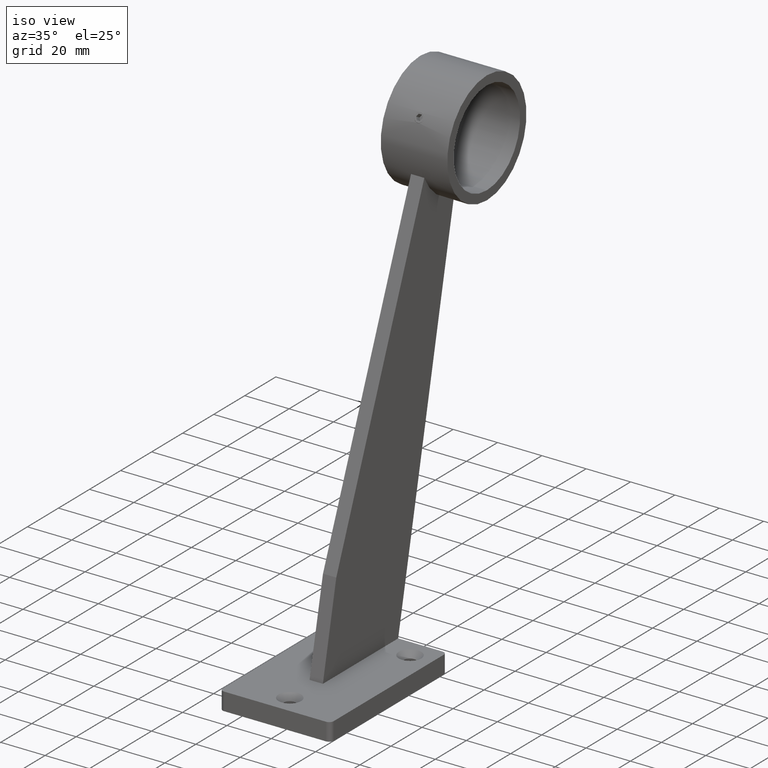
[diagram: clean part render]
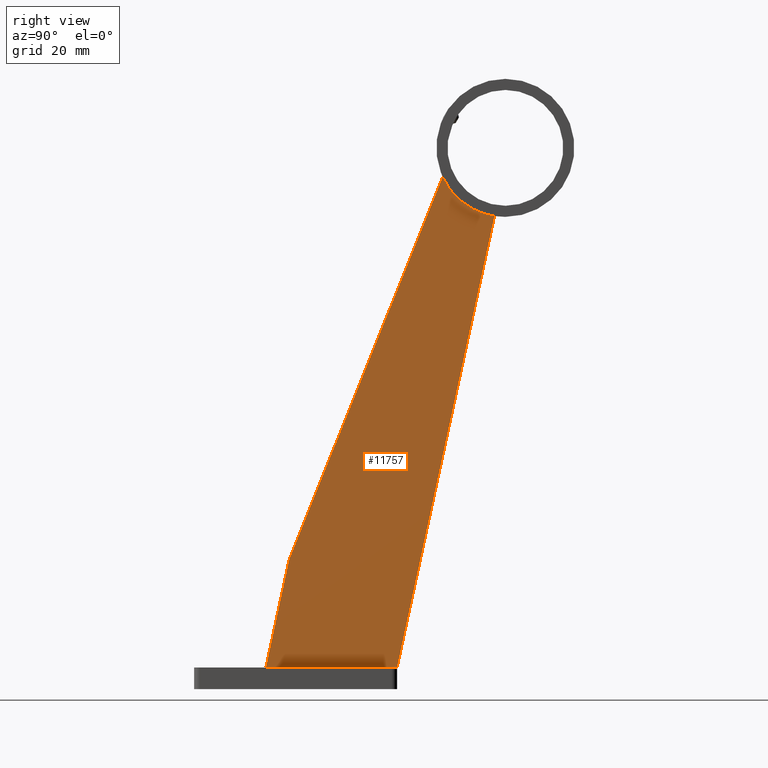
[diagram: tour spotlight — one face highlighted and labeled with its STEP entity id]
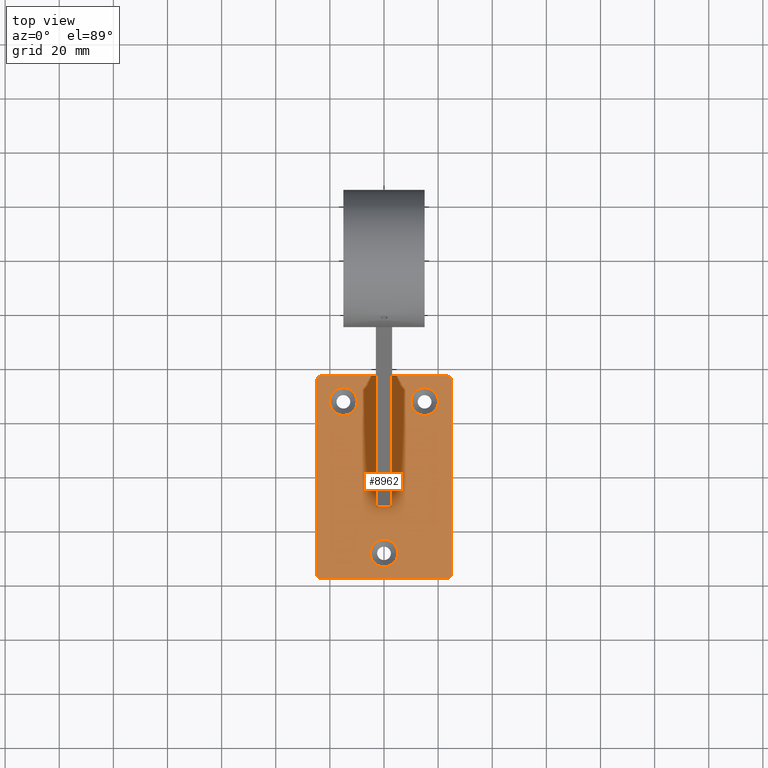
[diagram: tour spotlight — one face highlighted and labeled with its STEP entity id]
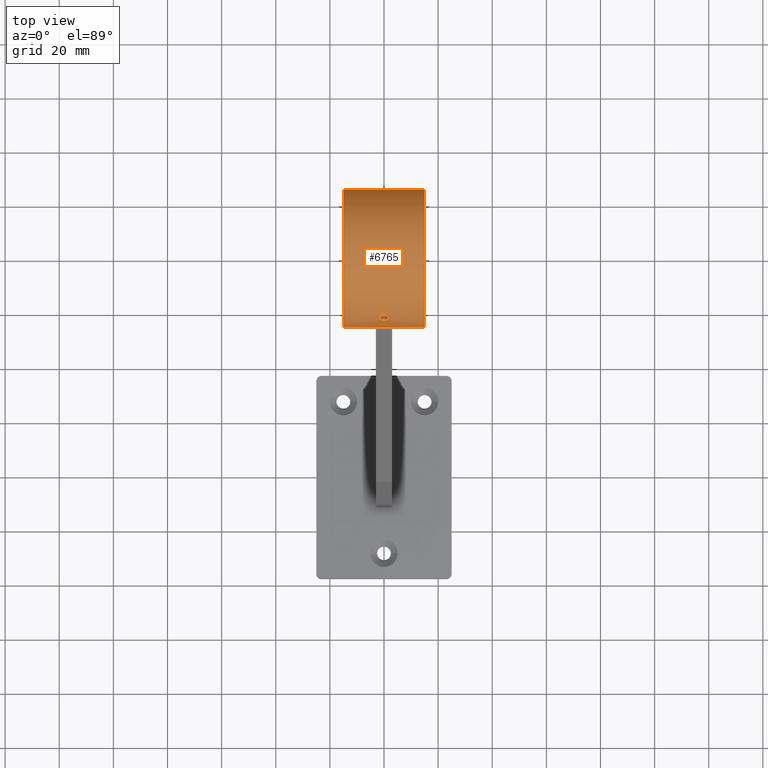
[diagram: tour spotlight — one face highlighted and labeled with its STEP entity id]
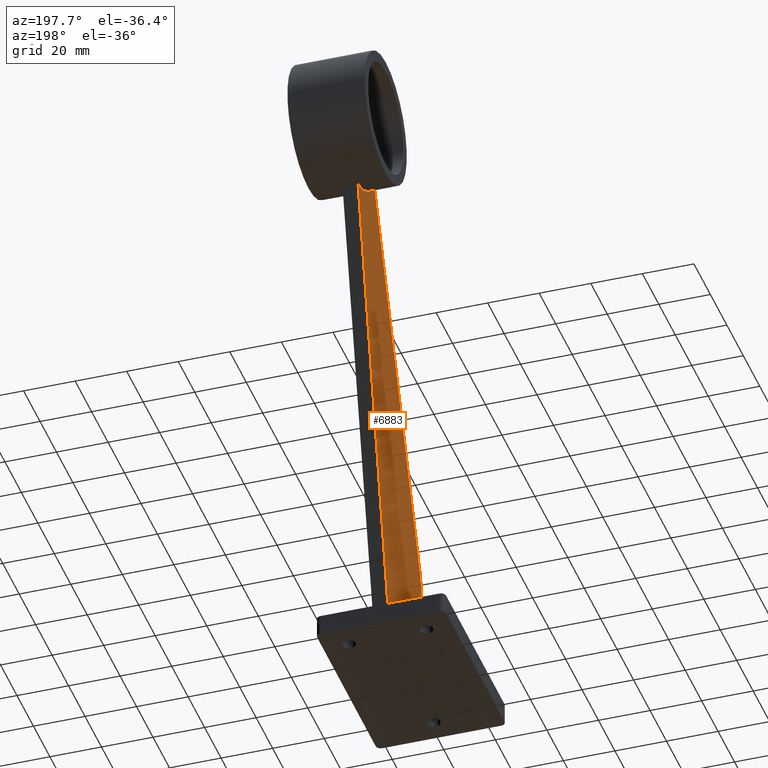
[diagram: tour spotlight — one face highlighted and labeled with its STEP entity id]
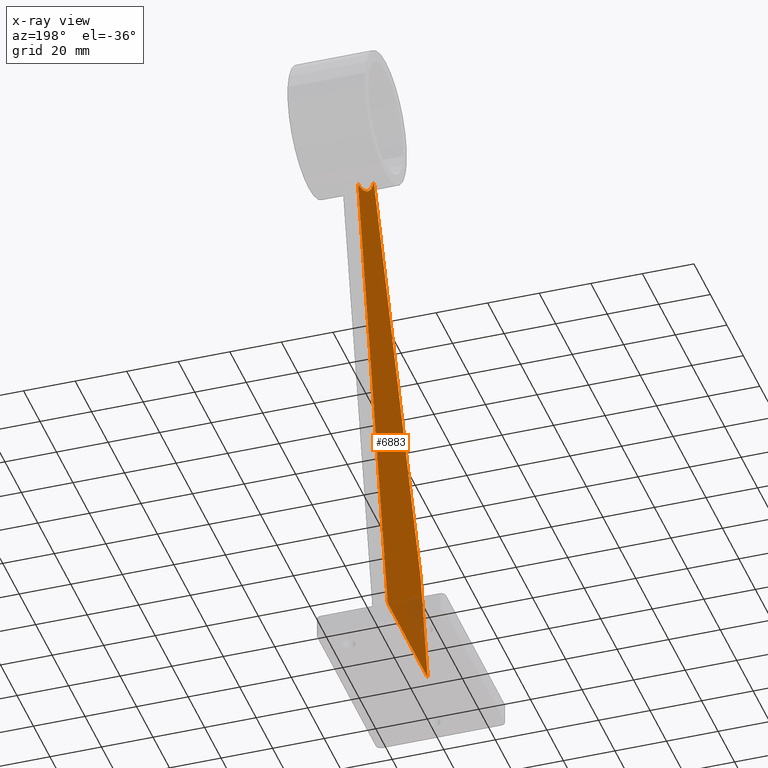
[diagram: x-ray of the same camera — body ghosted, this tour face saturated]
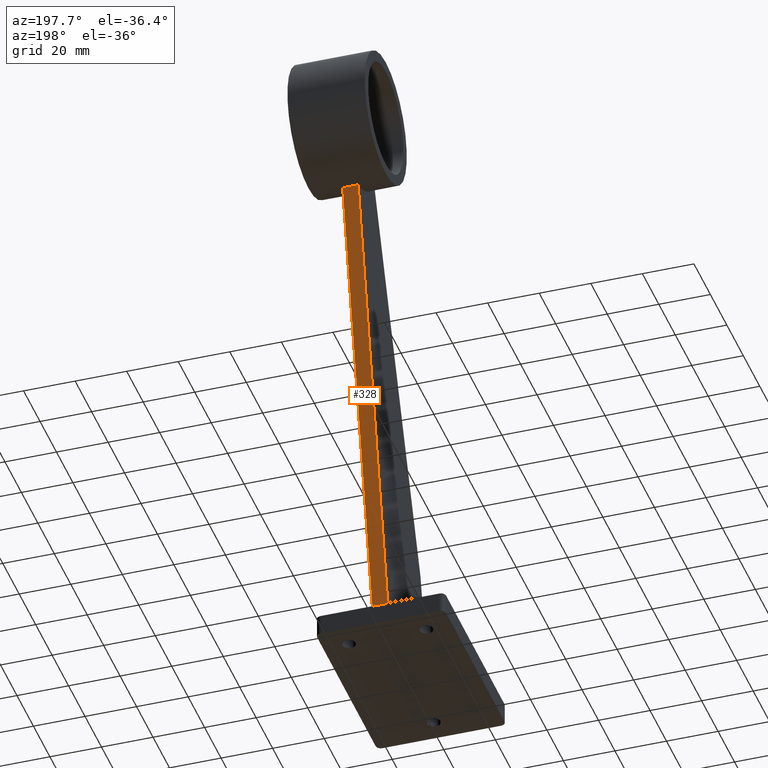
[diagram: tour spotlight — one face highlighted and labeled with its STEP entity id]
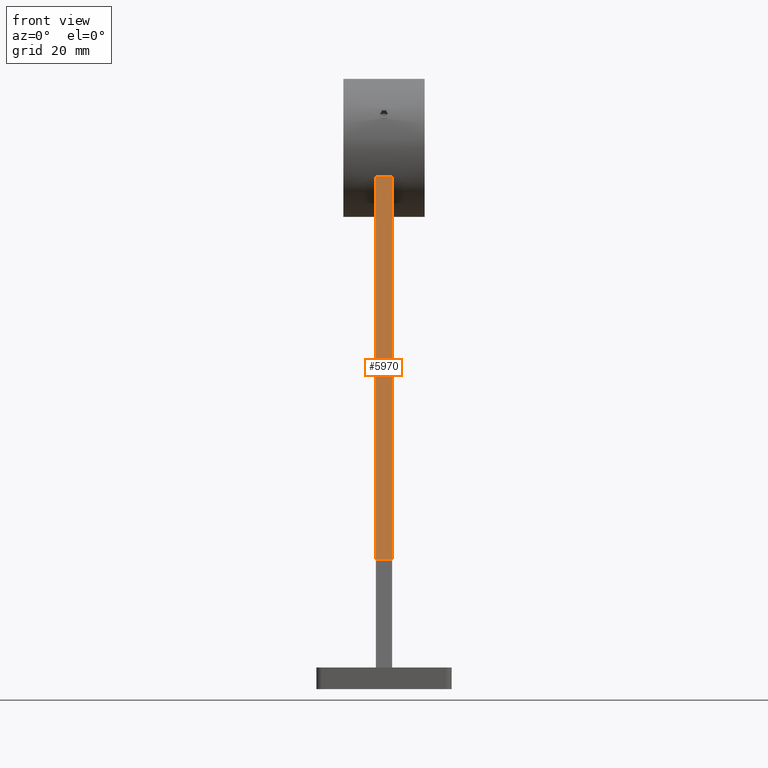
[diagram: tour spotlight — one face highlighted and labeled with its STEP entity id]
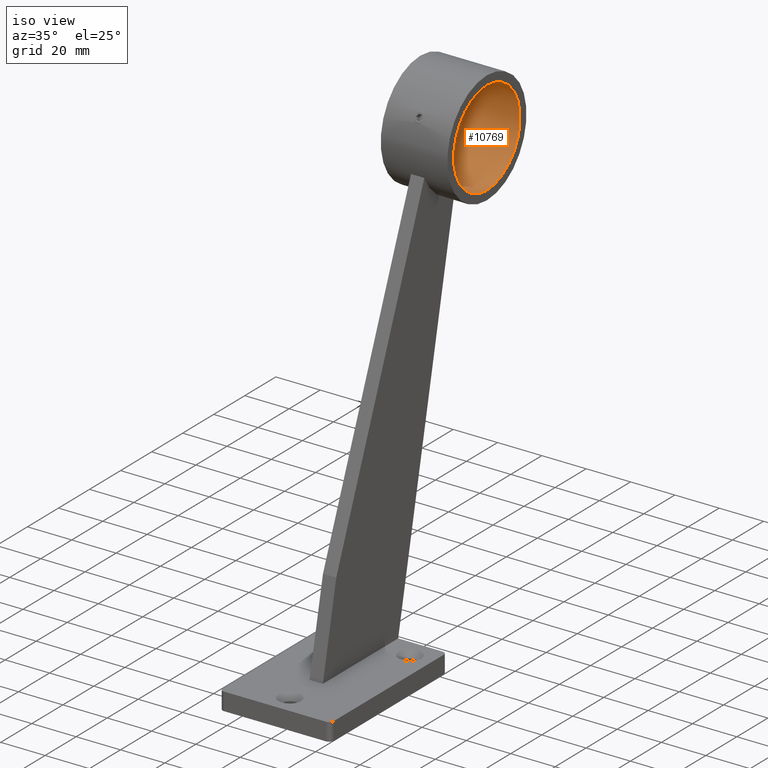
[diagram: tour spotlight — one face highlighted and labeled with its STEP entity id]
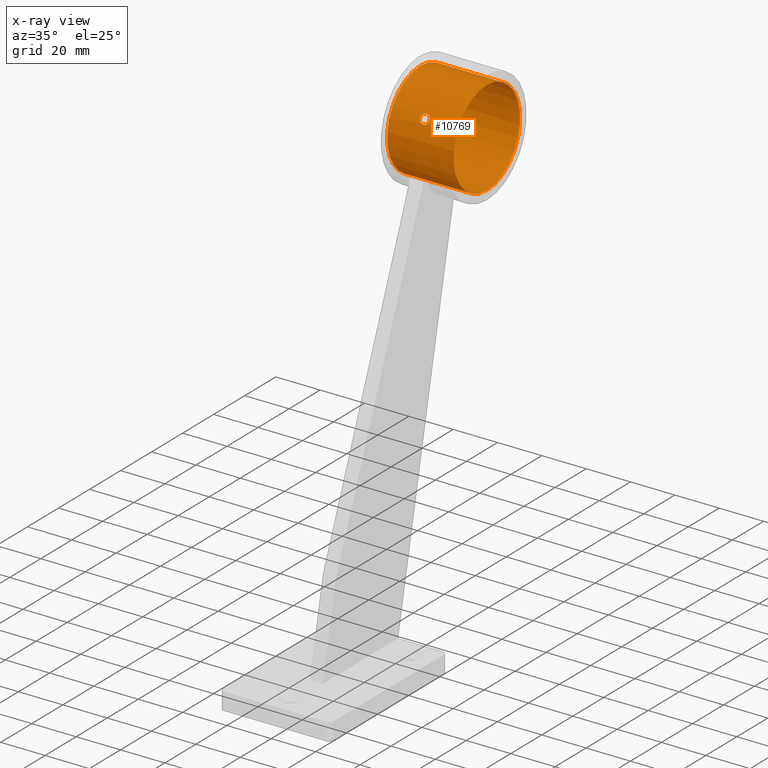
[diagram: x-ray of the same camera — body ghosted, this tour face saturated]
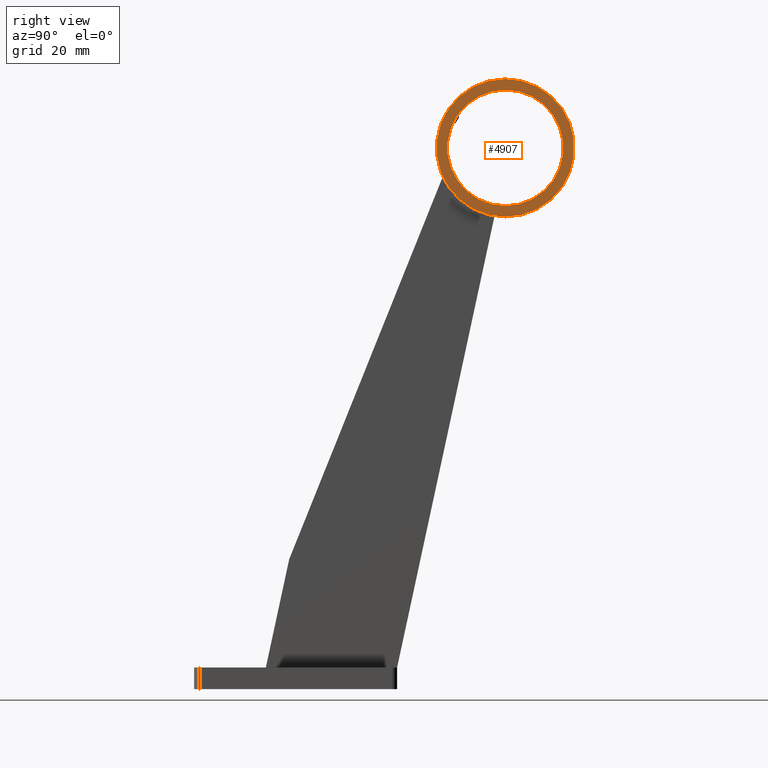
[diagram: tour spotlight — one face highlighted and labeled with its STEP entity id]
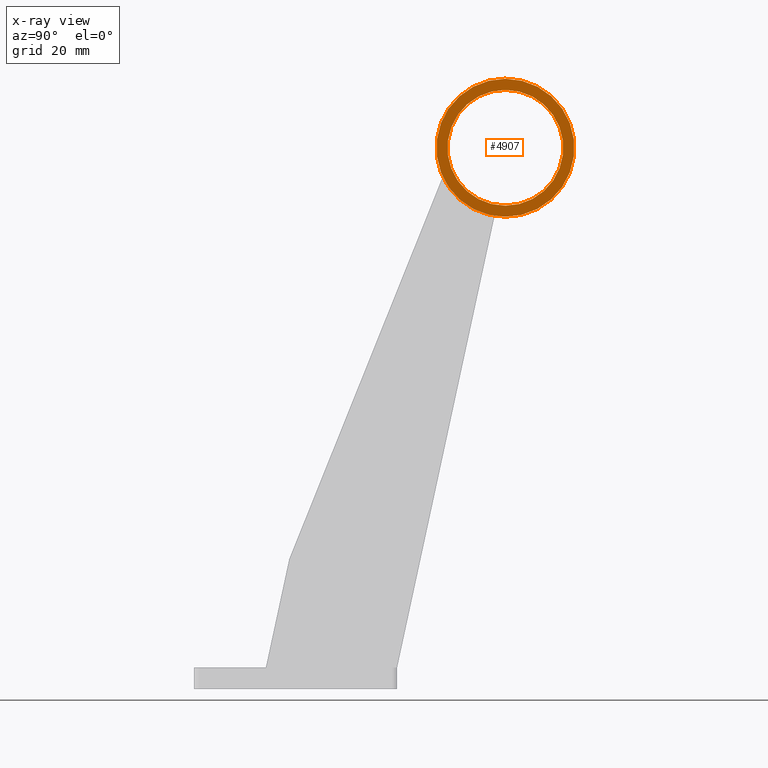
[diagram: x-ray of the same camera — body ghosted, this tour face saturated]
A machine part: a face-by-face anatomy tour. The part has 283 B-rep faces; the first image is the clean iso view, then the 8 largest visible faces are spotlighted one at a time (largest first), each with its STEP entity span.

Face 1 — right view, entity #11757. In plain terms, the highlighted planar face has unit normal (1, 0, 0).
Definition (entity closure, byte-faithful):
#112 = CARTESIAN_POINT ( 'NONE',  ( 3.000000000000000000, -12.16012668210152015, 2.624241090030875245 ) ) ;
#251 = DIRECTION ( 'NONE',  ( 0.000000000000000000, 0.2109506823000734665, 0.9774967056911922914 ) ) ;
#458 = ORIENTED_EDGE ( 'NONE', *, *, #14692, .F. ) ;
#911 = FACE_OUTER_BOUND ( 'NONE', #1834, .T. ) ;
#979 = ORIENTED_EDGE ( 'NONE', *, *, #6766, .F. ) ;
#1834 = EDGE_LOOP ( 'NONE', ( #979, #10997, #458, #2813, #5916 ) ) ;
#2273 = CARTESIAN_POINT ( 'NONE',  ( 3.000000000000000000, 0.000000000000000000, 0.000000000000000000 ) ) ;
#2528 = CARTESIAN_POINT ( 'NONE',  ( 3.000000000000000000, 0.000000000000000000, 8.000000000000000000 ) ) ;
#2548 = CARTESIAN_POINT ( 'NONE',  ( 3.000000000000000888, 54.35731167978458700, 189.2917799185221668 ) ) ;
#2813 = ORIENTED_EDGE ( 'NONE', *, *, #11470, .F. ) ;
#3425 = CIRCLE ( 'NONE', #14699, 25.49999999999999645 ) ;
#3853 = DIRECTION ( 'NONE',  ( 0.000000000000000000, 0.3725698851488922214, 0.9280041382882627810 ) ) ;
#4205 = CARTESIAN_POINT ( 'NONE',  ( 3.000000000000000000, 77.50000000000001421, 200.0000000000000000 ) ) ;
#4759 = VERTEX_POINT ( 'NONE', #10619 ) ;
#4951 = VECTOR ( 'NONE', #3853, 1000.000000000000114 ) ;
#5229 = VERTEX_POINT ( 'NONE', #10388 ) ;
#5409 = VECTOR ( 'NONE', #11841, 1000.000000000000000 ) ;
#5684 = DIRECTION ( 'NONE',  ( 1.000000000000000000, -0.000000000000000000, 0.000000000000000000 ) ) ;
#5916 = ORIENTED_EDGE ( 'NONE', *, *, #9752, .T. ) ;
#6200 = LINE ( 'NONE', #13157, #4951 ) ;
#6712 = LINE ( 'NONE', #112, #10839 ) ;
#6766 = EDGE_CURVE ( 'NONE', #13545, #13292, #3425, .T. ) ;
#8464 = VERTEX_POINT ( 'NONE', #12672 ) ;
#9752 = EDGE_CURVE ( 'NONE', #8464, #13292, #13378, .T. ) ;
#9906 = LINE ( 'NONE', #2528, #5409 ) ;
#9948 = CARTESIAN_POINT ( 'NONE',  ( 2.999999999999999112, 73.50000000000000000, 174.8156794810739711 ) ) ;
#10055 = DIRECTION ( 'NONE',  ( 0.000000000000000000, 0.000000000000000000, -1.000000000000000000 ) ) ;
#10318 = PLANE ( 'NONE',  #11641 ) ;
#10369 = VECTOR ( 'NONE', #14382, 1000.000000000000000 ) ;
#10388 = CARTESIAN_POINT ( 'NONE',  ( 3.000000000000000000, -11.00000000000000355, 8.000000000000000000 ) ) ;
#10619 = CARTESIAN_POINT ( 'NONE',  ( 3.000000000000000000, -2.367717923881523578, 48.00000000000000711 ) ) ;
#10839 = VECTOR ( 'NONE', #251, 1000.000000000000000 ) ;
#10997 = ORIENTED_EDGE ( 'NONE', *, *, #12635, .F. ) ;
#11470 = EDGE_CURVE ( 'NONE', #8464, #5229, #9906, .T. ) ;
#11641 = AXIS2_PLACEMENT_3D ( 'NONE', #2273, #5684, #12591 ) ;
#11757 = ADVANCED_FACE ( 'NONE', ( #911 ), #10318, .T. ) ;
#11841 = DIRECTION ( 'NONE',  ( 0.000000000000000000, -1.000000000000000000, 0.000000000000000000 ) ) ;
#12114 = DIRECTION ( 'NONE',  ( 1.000000000000000000, -0.000000000000000000, 0.000000000000000000 ) ) ;
#12591 = DIRECTION ( 'NONE',  ( 0.000000000000000000, 0.000000000000000000, -1.000000000000000000 ) ) ;
#12635 = EDGE_CURVE ( 'NONE', #4759, #13545, #6200, .T. ) ;
#12672 = CARTESIAN_POINT ( 'NONE',  ( 3.000000000000000000, 37.49999999999999289, 8.000000000000001776 ) ) ;
#13157 = CARTESIAN_POINT ( 'NONE',  ( 3.000000000000000000, -18.63488594879224891, 7.481429264432456705 ) ) ;
#13292 = VERTEX_POINT ( 'NONE', #9948 ) ;
#13378 = LINE ( 'NONE', #13385, #10369 ) ;
#13385 = CARTESIAN_POINT ( 'NONE',  ( 3.000000000000000000, 34.18161408529944367, -7.376633365033234746 ) ) ;
#13545 = VERTEX_POINT ( 'NONE', #2548 ) ;
#14382 = DIRECTION ( 'NONE',  ( 0.000000000000000000, 0.2109506823000734943, 0.9774967056911922914 ) ) ;
#14692 = EDGE_CURVE ( 'NONE', #5229, #4759, #6712, .T. ) ;
#14699 = AXIS2_PLACEMENT_3D ( 'NONE', #4205, #12114, #10055 ) ;

Face 2 — top view, entity #8962. In plain terms, the highlighted planar face has unit normal (0, 0, 1).
Definition (entity closure, byte-faithful):
#169 = VECTOR ( 'NONE', #6945, 1000.000000000000000 ) ;
#170 = VECTOR ( 'NONE', #673, 1000.000000000000000 ) ;
#673 = DIRECTION ( 'NONE',  ( 0.000000000000000000, -1.000000000000000000, 0.000000000000000000 ) ) ;
#944 = VERTEX_POINT ( 'NONE', #5038 ) ;
#949 = AXIS2_PLACEMENT_3D ( 'NONE', #1888, #1795, #11028 ) ;
#1007 = CARTESIAN_POINT ( 'NONE',  ( 22.99999999999999645, 35.50000000000000000, 8.000000000000000000 ) ) ;
#1115 = CARTESIAN_POINT ( 'NONE',  ( -23.00000000000000000, -35.50000000000000000, 8.000000000000000000 ) ) ;
#1157 = DIRECTION ( 'NONE',  ( -0.000000000000000000, 0.000000000000000000, 1.000000000000000000 ) ) ;
#1194 = EDGE_LOOP ( 'NONE', ( #5196 ) ) ;
#1216 = EDGE_LOOP ( 'NONE', ( #9152, #3372, #4034, #12821, #7150, #13023, #6757, #12934, #5566, #7648, #1704, #8627 ) ) ;
#1374 = EDGE_LOOP ( 'NONE', ( #6038 ) ) ;
#1525 = VERTEX_POINT ( 'NONE', #14377 ) ;
#1670 = CARTESIAN_POINT ( 'NONE',  ( 5.099999999999999645, -27.99999999999999645, 8.000000000000000000 ) ) ;
#1704 = ORIENTED_EDGE ( 'NONE', *, *, #12294, .T. ) ;
#1795 = DIRECTION ( 'NONE',  ( -0.000000000000000000, -0.000000000000000000, 1.000000000000000000 ) ) ;
#1858 = CARTESIAN_POINT ( 'NONE',  ( -24.99999999999999645, -37.50000000000000000, 8.000000000000000000 ) ) ;
#1888 = CARTESIAN_POINT ( 'NONE',  ( 15.00000000000000355, 27.99999999999999645, 8.000000000000000000 ) ) ;
#1964 = CIRCLE ( 'NONE', #9180, 2.000000000000001776 ) ;
#2031 = CIRCLE ( 'NONE', #14310, 1.999999999999998224 ) ;
#2061 = CIRCLE ( 'NONE', #5393, 2.000000000000001776 ) ;
#2191 = CARTESIAN_POINT ( 'NONE',  ( 0.000000000000000000, 0.000000000000000000, 8.000000000000000000 ) ) ;
#2218 = DIRECTION ( 'NONE',  ( 1.000000000000000000, 0.000000000000000000, 0.000000000000000000 ) ) ;
#2224 = VECTOR ( 'NONE', #9117, 1000.000000000000000 ) ;
#2294 = VERTEX_POINT ( 'NONE', #13479 ) ;
#2427 = EDGE_CURVE ( 'NONE', #6153, #6153, #8975, .T. ) ;
#2480 = FACE_BOUND ( 'NONE', #11087, .T. ) ;
#2483 = EDGE_CURVE ( 'NONE', #14098, #1525, #9879, .T. ) ;
#2528 = CARTESIAN_POINT ( 'NONE',  ( 3.000000000000000000, 0.000000000000000000, 8.000000000000000000 ) ) ;
#2546 = VERTEX_POINT ( 'NONE', #8990 ) ;
#3161 = CIRCLE ( 'NONE', #949, 5.100000000000000533 ) ;
#3347 = DIRECTION ( 'NONE',  ( -0.000000000000000000, 0.000000000000000000, 1.000000000000000000 ) ) ;
#3372 = ORIENTED_EDGE ( 'NONE', *, *, #13991, .T. ) ;
#3377 = CARTESIAN_POINT ( 'NONE',  ( 25.00000000000000000, 37.50000000000000000, 8.000000000000000000 ) ) ;
#3718 = CARTESIAN_POINT ( 'NONE',  ( -25.00000000000000355, 37.50000000000000000, 8.000000000000000000 ) ) ;
#3852 = VERTEX_POINT ( 'NONE', #12949 ) ;
#3857 = AXIS2_PLACEMENT_3D ( 'NONE', #5085, #10632, #11902 ) ;
#3903 = LINE ( 'NONE', #1858, #13766 ) ;
#4004 = DIRECTION ( 'NONE',  ( 1.000000000000000000, 0.000000000000000000, 0.000000000000000000 ) ) ;
#4034 = ORIENTED_EDGE ( 'NONE', *, *, #11790, .T. ) ;
#4142 = AXIS2_PLACEMENT_3D ( 'NONE', #1007, #12529, #2218 ) ;
#4171 = CARTESIAN_POINT ( 'NONE',  ( -3.000000000000000000, 37.49999999999999289, 8.000000000000001776 ) ) ;
#4859 = LINE ( 'NONE', #3718, #11120 ) ;
#4985 = FACE_BOUND ( 'NONE', #1194, .T. ) ;
#5001 = DIRECTION ( 'NONE',  ( -0.000000000000000000, -0.000000000000000000, 1.000000000000000000 ) ) ;
#5038 = CARTESIAN_POINT ( 'NONE',  ( 20.10000000000000497, 27.99999999999999645, 8.000000000000000000 ) ) ;
#5085 = CARTESIAN_POINT ( 'NONE',  ( 0.000000000000000000, -27.99999999999999645, 8.000000000000000000 ) ) ;
#5196 = ORIENTED_EDGE ( 'NONE', *, *, #13659, .F. ) ;
#5229 = VERTEX_POINT ( 'NONE', #10388 ) ;
#5393 = AXIS2_PLACEMENT_3D ( 'NONE', #8119, #5839, #13965 ) ;
#5409 = VECTOR ( 'NONE', #11841, 1000.000000000000000 ) ;
#5566 = ORIENTED_EDGE ( 'NONE', *, *, #6973, .T. ) ;
#5819 = LINE ( 'NONE', #3377, #2224 ) ;
#5839 = DIRECTION ( 'NONE',  ( -0.000000000000000000, 0.000000000000000000, 1.000000000000000000 ) ) ;
#6038 = ORIENTED_EDGE ( 'NONE', *, *, #10614, .F. ) ;
#6153 = VERTEX_POINT ( 'NONE', #9842 ) ;
#6264 = VERTEX_POINT ( 'NONE', #10945 ) ;
#6434 = AXIS2_PLACEMENT_3D ( 'NONE', #14255, #5001, #4004 ) ;
#6476 = EDGE_CURVE ( 'NONE', #13806, #2294, #1964, .T. ) ;
#6587 = DIRECTION ( 'NONE',  ( 1.000000000000000000, 0.000000000000000000, 0.000000000000000000 ) ) ;
#6757 = ORIENTED_EDGE ( 'NONE', *, *, #14510, .T. ) ;
#6938 = VERTEX_POINT ( 'NONE', #14159 ) ;
#6945 = DIRECTION ( 'NONE',  ( 9.251858538542971581E-17, -1.000000000000000000, 0.000000000000000000 ) ) ;
#6973 = EDGE_CURVE ( 'NONE', #2546, #8464, #4859, .T. ) ;
#7073 = CIRCLE ( 'NONE', #4142, 1.999999999999998224 ) ;
#7150 = ORIENTED_EDGE ( 'NONE', *, *, #9188, .T. ) ;
#7413 = VERTEX_POINT ( 'NONE', #1670 ) ;
#7605 = LINE ( 'NONE', #9552, #14565 ) ;
#7648 = ORIENTED_EDGE ( 'NONE', *, *, #11470, .T. ) ;
#8119 = CARTESIAN_POINT ( 'NONE',  ( -23.00000000000000711, 35.50000000000000000, 8.000000000000000000 ) ) ;
#8459 = ORIENTED_EDGE ( 'NONE', *, *, #2427, .F. ) ;
#8464 = VERTEX_POINT ( 'NONE', #12672 ) ;
#8627 = ORIENTED_EDGE ( 'NONE', *, *, #2483, .F. ) ;
#8864 = CARTESIAN_POINT ( 'NONE',  ( -24.99999999999999645, -35.50000000000000000, 8.000000000000000000 ) ) ;
#8959 = FACE_OUTER_BOUND ( 'NONE', #1216, .T. ) ;
#8962 = ADVANCED_FACE ( 'NONE', ( #2480, #9338, #4985, #8959 ), #13560, .T. ) ;
#8975 = CIRCLE ( 'NONE', #6434, 5.099999999999998757 ) ;
#8990 = CARTESIAN_POINT ( 'NONE',  ( 22.99999999999999645, 37.50000000000000000, 8.000000000000000000 ) ) ;
#9117 = DIRECTION ( 'NONE',  ( -4.625929269271485791E-17, 1.000000000000000000, -0.000000000000000000 ) ) ;
#9152 = ORIENTED_EDGE ( 'NONE', *, *, #14842, .T. ) ;
#9180 = AXIS2_PLACEMENT_3D ( 'NONE', #1115, #1157, #13847 ) ;
#9188 = EDGE_CURVE ( 'NONE', #2294, #6264, #3903, .T. ) ;
#9215 = CARTESIAN_POINT ( 'NONE',  ( 3.000000000000000000, -11.00000000000000355, 8.000000000000000000 ) ) ;
#9338 = FACE_BOUND ( 'NONE', #1374, .T. ) ;
#9447 = CARTESIAN_POINT ( 'NONE',  ( -25.00000000000000355, 35.50000000000000000, 8.000000000000000000 ) ) ;
#9552 = CARTESIAN_POINT ( 'NONE',  ( -25.00000000000000355, 37.50000000000000000, 8.000000000000000000 ) ) ;
#9564 = AXIS2_PLACEMENT_3D ( 'NONE', #2191, #3347, #14748 ) ;
#9791 = CARTESIAN_POINT ( 'NONE',  ( 23.00000000000000355, -35.50000000000000000, 8.000000000000000000 ) ) ;
#9839 = CARTESIAN_POINT ( 'NONE',  ( -3.000000000000000000, 0.000000000000000000, 8.000000000000000000 ) ) ;
#9842 = CARTESIAN_POINT ( 'NONE',  ( -9.900000000000005684, 27.99999999999999645, 8.000000000000000000 ) ) ;
#9879 = LINE ( 'NONE', #9839, #170 ) ;
#9906 = LINE ( 'NONE', #2528, #5409 ) ;
#10388 = CARTESIAN_POINT ( 'NONE',  ( 3.000000000000000000, -11.00000000000000355, 8.000000000000000000 ) ) ;
#10614 = EDGE_CURVE ( 'NONE', #944, #944, #3161, .T. ) ;
#10632 = DIRECTION ( 'NONE',  ( -0.000000000000000000, -0.000000000000000000, 1.000000000000000000 ) ) ;
#10945 = CARTESIAN_POINT ( 'NONE',  ( 23.00000000000000355, -37.50000000000000000, 8.000000000000000000 ) ) ;
#11027 = CIRCLE ( 'NONE', #3857, 5.099999999999999645 ) ;
#11028 = DIRECTION ( 'NONE',  ( 1.000000000000000000, 0.000000000000000000, 0.000000000000000000 ) ) ;
#11087 = EDGE_LOOP ( 'NONE', ( #8459 ) ) ;
#11120 = VECTOR ( 'NONE', #11816, 1000.000000000000000 ) ;
#11470 = EDGE_CURVE ( 'NONE', #8464, #5229, #9906, .T. ) ;
#11492 = DIRECTION ( 'NONE',  ( -1.000000000000000000, -0.000000000000000000, -0.000000000000000000 ) ) ;
#11790 = EDGE_CURVE ( 'NONE', #13562, #13806, #13621, .T. ) ;
#11816 = DIRECTION ( 'NONE',  ( -1.000000000000000000, -0.000000000000000000, -0.000000000000000000 ) ) ;
#11841 = DIRECTION ( 'NONE',  ( 0.000000000000000000, -1.000000000000000000, 0.000000000000000000 ) ) ;
#11902 = DIRECTION ( 'NONE',  ( 1.000000000000000000, 0.000000000000000000, 0.000000000000000000 ) ) ;
#12057 = DIRECTION ( 'NONE',  ( -1.000000000000000000, -0.000000000000000000, -0.000000000000000000 ) ) ;
#12294 = EDGE_CURVE ( 'NONE', #5229, #1525, #14607, .T. ) ;
#12307 = VERTEX_POINT ( 'NONE', #14821 ) ;
#12529 = DIRECTION ( 'NONE',  ( -0.000000000000000000, 0.000000000000000000, 1.000000000000000000 ) ) ;
#12672 = CARTESIAN_POINT ( 'NONE',  ( 3.000000000000000000, 37.49999999999999289, 8.000000000000001776 ) ) ;
#12821 = ORIENTED_EDGE ( 'NONE', *, *, #6476, .T. ) ;
#12934 = ORIENTED_EDGE ( 'NONE', *, *, #14535, .T. ) ;
#12949 = CARTESIAN_POINT ( 'NONE',  ( -23.00000000000000711, 37.50000000000000000, 8.000000000000000000 ) ) ;
#13023 = ORIENTED_EDGE ( 'NONE', *, *, #14818, .T. ) ;
#13266 = DIRECTION ( 'NONE',  ( 1.000000000000000000, 0.000000000000000000, 0.000000000000000000 ) ) ;
#13479 = CARTESIAN_POINT ( 'NONE',  ( -23.00000000000000000, -37.50000000000000000, 8.000000000000000000 ) ) ;
#13547 = VECTOR ( 'NONE', #11492, 1000.000000000000000 ) ;
#13560 = PLANE ( 'NONE',  #9564 ) ;
#13562 = VERTEX_POINT ( 'NONE', #9447 ) ;
#13621 = LINE ( 'NONE', #14777, #169 ) ;
#13659 = EDGE_CURVE ( 'NONE', #7413, #7413, #11027, .T. ) ;
#13766 = VECTOR ( 'NONE', #6587, 1000.000000000000000 ) ;
#13806 = VERTEX_POINT ( 'NONE', #8864 ) ;
#13847 = DIRECTION ( 'NONE',  ( 1.000000000000000000, 0.000000000000000000, 0.000000000000000000 ) ) ;
#13965 = DIRECTION ( 'NONE',  ( 1.000000000000000000, 0.000000000000000000, 0.000000000000000000 ) ) ;
#13991 = EDGE_CURVE ( 'NONE', #3852, #13562, #2061, .T. ) ;
#14098 = VERTEX_POINT ( 'NONE', #4171 ) ;
#14159 = CARTESIAN_POINT ( 'NONE',  ( 25.00000000000000000, 35.50000000000000000, 8.000000000000000000 ) ) ;
#14255 = CARTESIAN_POINT ( 'NONE',  ( -15.00000000000000533, 27.99999999999999645, 8.000000000000000000 ) ) ;
#14310 = AXIS2_PLACEMENT_3D ( 'NONE', #9791, #14312, #13266 ) ;
#14312 = DIRECTION ( 'NONE',  ( -0.000000000000000000, 0.000000000000000000, 1.000000000000000000 ) ) ;
#14377 = CARTESIAN_POINT ( 'NONE',  ( -3.000000000000000000, -11.00000000000000355, 8.000000000000000000 ) ) ;
#14510 = EDGE_CURVE ( 'NONE', #12307, #6938, #5819, .T. ) ;
#14535 = EDGE_CURVE ( 'NONE', #6938, #2546, #7073, .T. ) ;
#14565 = VECTOR ( 'NONE', #12057, 1000.000000000000000 ) ;
#14607 = LINE ( 'NONE', #9215, #13547 ) ;
#14748 = DIRECTION ( 'NONE',  ( 1.000000000000000000, 0.000000000000000000, 0.000000000000000000 ) ) ;
#14777 = CARTESIAN_POINT ( 'NONE',  ( -25.00000000000000355, 37.50000000000000000, 8.000000000000000000 ) ) ;
#14818 = EDGE_CURVE ( 'NONE', #6264, #12307, #2031, .T. ) ;
#14821 = CARTESIAN_POINT ( 'NONE',  ( 25.00000000000000355, -35.50000000000000000, 8.000000000000000000 ) ) ;
#14842 = EDGE_CURVE ( 'NONE', #14098, #3852, #7605, .T. ) ;

Face 3 — top view, entity #6765. In plain terms, the highlighted cylindrical surface (bore or boss wall) has radius 25.5 mm, axis along (-1, -0, -0).
Definition (entity closure, byte-faithful):
#103 = CARTESIAN_POINT ( 'NONE',  ( -2.100073886416768953, 55.48428676774947377, 212.8676782864014569 ) ) ;
#202 = CARTESIAN_POINT ( 'NONE',  ( -0.2752669258845035771, 54.44719391796184027, 210.9004058946567000 ) ) ;
#247 = CARTESIAN_POINT ( 'NONE',  ( -0.2770550746789550711, 56.53344737827564614, 214.5139381141528361 ) ) ;
#261 = EDGE_CURVE ( 'NONE', #13545, #11864, #11139, .T. ) ;
#291 = CARTESIAN_POINT ( 'NONE',  ( -1.822294103724356740, 55.96125180903748486, 213.6508349336732522 ) ) ;
#380 = CARTESIAN_POINT ( 'NONE',  ( 1.669122441164216930, 56.08491808673522883, 213.8440351628042038 ) ) ;
#775 = LINE ( 'NONE', #10085, #10516 ) ;
#882 = CIRCLE ( 'NONE', #7209, 25.49999999999999645 ) ;
#921 = DIRECTION ( 'NONE',  ( 0.000000000000000000, 0.000000000000000000, -1.000000000000000000 ) ) ;
#1248 = CARTESIAN_POINT ( 'NONE',  ( -1.993192082996712688, 55.76150720308228159, 213.3305707416730570 ) ) ;
#1305 = CARTESIAN_POINT ( 'NONE',  ( 1.289697830089673536, 56.30356715490667341, 214.1774035862536607 ) ) ;
#1439 = FACE_OUTER_BOUND ( 'NONE', #5411, .T. ) ;
#1447 = CARTESIAN_POINT ( 'NONE',  ( -1.670337499428492967, 56.08403152436552119, 213.8426609533973988 ) ) ;
#1490 = CARTESIAN_POINT ( 'NONE',  ( 1.993258047854111759, 55.08622020549162102, 212.1609494729769096 ) ) ;
#1605 = DIRECTION ( 'NONE',  ( -1.000000000000000000, -0.000000000000000000, -0.000000000000000000 ) ) ;
#1633 = CARTESIAN_POINT ( 'NONE',  ( 1.582877276748827500, 54.75546618989465486, 211.5302042317364055 ) ) ;
#1848 = EDGE_CURVE ( 'NONE', #3667, #3667, #882, .T. ) ;
#1929 = AXIS2_PLACEMENT_3D ( 'NONE', #14561, #5414, #5210 ) ;
#2002 = CARTESIAN_POINT ( 'NONE',  ( -15.00000000000000000, 77.50000000000001421, 200.0000000000000000 ) ) ;
#2058 = EDGE_CURVE ( 'NONE', #12244, #12244, #3659, .T. ) ;
#2454 = CARTESIAN_POINT ( 'NONE',  ( -2.044639982466134320, 55.14463589078562222, 212.2699469199698399 ) ) ;
#2503 = CARTESIAN_POINT ( 'NONE',  ( -1.835137253062850027, 54.90578279497353975, 211.8243499088329145 ) ) ;
#2548 = CARTESIAN_POINT ( 'NONE',  ( 3.000000000000000888, 54.35731167978458700, 189.2917799185221668 ) ) ;
#2588 = CARTESIAN_POINT ( 'NONE',  ( -1.583582562319257203, 56.14192854697918023, 213.9317060560475170 ) ) ;
#2676 = FACE_BOUND ( 'NONE', #7333, .T. ) ;
#2735 = CARTESIAN_POINT ( 'NONE',  ( 1.671457133818818441, 54.80456840716230005, 211.6267122668598688 ) ) ;
#2933 = CARTESIAN_POINT ( 'NONE',  ( 0.000000000000000000, 54.44136533085251983, 210.8880378027810991 ) ) ;
#3028 = DIRECTION ( 'NONE',  ( -1.000000000000000000, -0.000000000000000000, -0.000000000000000000 ) ) ;
#3038 = CYLINDRICAL_SURFACE ( 'NONE', #1929, 25.49999999999999645 ) ;
#3425 = CIRCLE ( 'NONE', #14699, 25.49999999999999645 ) ;
#3574 = CARTESIAN_POINT ( 'NONE',  ( -2.099851303524173929, 55.27877742316361775, 212.5116889994419864 ) ) ;
#3627 = CARTESIAN_POINT ( 'NONE',  ( -1.054205028420095447, 56.38333762886109923, 214.2948376251985678 ) ) ;
#3659 = B_SPLINE_CURVE_WITH_KNOTS ( 'NONE', 3,
 ( #12869, #13936, #202, #5962, #9413, #11680, #6004, #13833, #13986, #8186, #2503, #2454, #3574, #103, #7118, #14028, #1248, #4910, #291, #1447, #2588, #10638, #10494, #3627, #8239, #3762, #4766, #247, #5814, #6980, #4720, #11634, #1305, #8558, #380, #11956, #8415, #6104, #11865, #6250, #12002, #9690, #8509, #9738, #1490, #14253, #14067, #2735, #1633, #13055, #10674, #12956, #10773, #5047, #12912, #6056 ),
 .UNSPECIFIED., .T., .F.,
 ( 4, 2, 2, 2, 2, 2, 2, 2, 2, 2, 2, 2, 2, 2, 2, 2, 2, 2, 2, 2, 2, 2, 2, 2, 2, 2, 2, 4 ),
 ( 0.000000000000000000, 0.0004104734709353608153, 0.0008209469418707216306, 0.001231420412806082066, 0.001641893883741442611, 0.002462840825612110790, 0.003283787767482779403, 0.003694261238418144501, 0.004104734709353509599, 0.004515208180288874697, 0.004925681651224239795, 0.005336155122159604892, 0.005746628593094970858, 0.006157102064030335956, 0.006567575534965701053, 0.007388522476836430382, 0.008209469418707161445, 0.008619942889642526543, 0.009030416360577891641, 0.009440889831513256739, 0.009851363302448621836, 0.01026183677338398693, 0.01067231024431935203, 0.01108278371525471713, 0.01149325718619008223, 0.01190373065712544733, 0.01231420412806081242, 0.01313515106993154609 ),
 .UNSPECIFIED. ) ;
#3667 = VERTEX_POINT ( 'NONE', #14366 ) ;
#3762 = CARTESIAN_POINT ( 'NONE',  ( -0.6771053414310689300, 56.48013382368441881, 214.4366901540807930 ) ) ;
#3794 = VECTOR ( 'NONE', #1605, 1000.000000000000000 ) ;
#4111 = VERTEX_POINT ( 'NONE', #6805 ) ;
#4205 = CARTESIAN_POINT ( 'NONE',  ( 3.000000000000000000, 77.50000000000001421, 200.0000000000000000 ) ) ;
#4720 = CARTESIAN_POINT ( 'NONE',  ( 0.5497640949370750096, 56.50987302155034797, 214.4801782692479719 ) ) ;
#4766 = CARTESIAN_POINT ( 'NONE',  ( -0.5462099929733917891, 56.50277119661418368, 214.4695235235740256 ) ) ;
#4841 = ORIENTED_EDGE ( 'NONE', *, *, #1848, .F. ) ;
#4910 = CARTESIAN_POINT ( 'NONE',  ( -1.888020714575353809, 55.89560086643188441, 213.5468122987614379 ) ) ;
#5047 = CARTESIAN_POINT ( 'NONE',  ( 0.5533859377415798475, 54.46515514655388301, 210.9387845090656413 ) ) ;
#5210 = DIRECTION ( 'NONE',  ( 0.000000000000000000, 0.000000000000000000, 1.000000000000000000 ) ) ;
#5411 = EDGE_LOOP ( 'NONE', ( #4841 ) ) ;
#5414 = DIRECTION ( 'NONE',  ( -1.000000000000000000, -0.000000000000000000, -0.000000000000000000 ) ) ;
#5574 = DIRECTION ( 'NONE',  ( 1.000000000000000000, 0.000000000000000000, 0.000000000000000000 ) ) ;
#5748 = FACE_OUTER_BOUND ( 'NONE', #9529, .T. ) ;
#5814 = CARTESIAN_POINT ( 'NONE',  ( -0.1378350449928566757, 56.54133680910002369, 214.5253033446090285 ) ) ;
#5888 = AXIS2_PLACEMENT_3D ( 'NONE', #12547, #14787, #921 ) ;
#5962 = CARTESIAN_POINT ( 'NONE',  ( -0.5437344880969523508, 54.47013595652249052, 210.9487934980647594 ) ) ;
#6004 = CARTESIAN_POINT ( 'NONE',  ( -1.052009145292167380, 54.56140533267594606, 211.1389724736448272 ) ) ;
#6056 = CARTESIAN_POINT ( 'NONE',  ( 4.065758146820641628E-17, 54.44136533085253404, 210.8880378027810991 ) ) ;
#6104 = CARTESIAN_POINT ( 'NONE',  ( 1.991944648297779397, 55.76342154634961901, 213.3336906077510378 ) ) ;
#6250 = CARTESIAN_POINT ( 'NONE',  ( 2.086133895390165804, 55.55589685763782626, 212.9893940867520712 ) ) ;
#6253 = CIRCLE ( 'NONE', #8484, 25.49999999999999645 ) ;
#6262 = DIRECTION ( 'NONE',  ( 0.000000000000000000, 0.000000000000000000, -1.000000000000000000 ) ) ;
#6349 = ORIENTED_EDGE ( 'NONE', *, *, #6766, .T. ) ;
#6765 = ADVANCED_FACE ( 'NONE', ( #2676, #7350, #1439, #5748 ), #3038, .T. ) ;
#6766 = EDGE_CURVE ( 'NONE', #13545, #13292, #3425, .T. ) ;
#6805 = CARTESIAN_POINT ( 'NONE',  ( -3.000000000000000000, 73.50000000000000000, 174.8156794810739996 ) ) ;
#6980 = CARTESIAN_POINT ( 'NONE',  ( 0.2733829336889419537, 56.54142213706438014, 214.5254264644187856 ) ) ;
#7118 = CARTESIAN_POINT ( 'NONE',  ( -2.086432461926153170, 55.55485895280471453, 212.9876452708938359 ) ) ;
#7209 = AXIS2_PLACEMENT_3D ( 'NONE', #10214, #5574, #8044 ) ;
#7333 = EDGE_LOOP ( 'NONE', ( #9800 ) ) ;
#7350 = FACE_BOUND ( 'NONE', #11427, .T. ) ;
#8044 = DIRECTION ( 'NONE',  ( 0.000000000000000000, 0.000000000000000000, -1.000000000000000000 ) ) ;
#8186 = CARTESIAN_POINT ( 'NONE',  ( -1.678695858380248263, 54.79847981107506882, 211.6158777008026277 ) ) ;
#8239 = CARTESIAN_POINT ( 'NONE',  ( -0.9314683265812169211, 56.42043534913173630, 214.3493815478234126 ) ) ;
#8312 = EDGE_CURVE ( 'NONE', #9769, #9769, #6253, .T. ) ;
#8341 = CARTESIAN_POINT ( 'NONE',  ( -2.999999999999999112, 54.35731167978458700, 189.2917799185221952 ) ) ;
#8415 = CARTESIAN_POINT ( 'NONE',  ( 1.886356009640111742, 55.89739042894791510, 213.5496644908874089 ) ) ;
#8484 = AXIS2_PLACEMENT_3D ( 'NONE', #2002, #13478, #6262 ) ;
#8509 = CARTESIAN_POINT ( 'NONE',  ( 2.086614573074731638, 55.28059904943245328, 212.5126434641860840 ) ) ;
#8558 = CARTESIAN_POINT ( 'NONE',  ( 1.580384873571782478, 56.14383383170503805, 213.9346170038214154 ) ) ;
#8892 = ORIENTED_EDGE ( 'NONE', *, *, #13858, .T. ) ;
#9413 = CARTESIAN_POINT ( 'NONE',  ( -0.6771294247729349181, 54.48753133426209416, 210.9854030761437684 ) ) ;
#9529 = EDGE_LOOP ( 'NONE', ( #9619 ) ) ;
#9619 = ORIENTED_EDGE ( 'NONE', *, *, #8312, .T. ) ;
#9690 = CARTESIAN_POINT ( 'NONE',  ( 2.100134271862207580, 55.34804215699373486, 212.6317056441443185 ) ) ;
#9738 = CARTESIAN_POINT ( 'NONE',  ( 2.033483573927915344, 55.15007642988551595, 212.2779860512202106 ) ) ;
#9769 = VERTEX_POINT ( 'NONE', #10976 ) ;
#9800 = ORIENTED_EDGE ( 'NONE', *, *, #2058, .T. ) ;
#9948 = CARTESIAN_POINT ( 'NONE',  ( 2.999999999999999112, 73.50000000000000000, 174.8156794810739711 ) ) ;
#10055 = DIRECTION ( 'NONE',  ( 0.000000000000000000, 0.000000000000000000, -1.000000000000000000 ) ) ;
#10085 = CARTESIAN_POINT ( 'NONE',  ( 3.000000000000000000, 73.50000000000000000, 174.8156794810739996 ) ) ;
#10214 = CARTESIAN_POINT ( 'NONE',  ( 15.00000000000000000, 77.50000000000001421, 200.0000000000000000 ) ) ;
#10494 = CARTESIAN_POINT ( 'NONE',  ( -1.281538936697958375, 56.29823918962445362, 214.1683150362734978 ) ) ;
#10516 = VECTOR ( 'NONE', #3028, 1000.000000000000000 ) ;
#10638 = CARTESIAN_POINT ( 'NONE',  ( -1.387628548782914306, 56.24989894020053782, 214.0958453018172349 ) ) ;
#10674 = CARTESIAN_POINT ( 'NONE',  ( 1.283728406994136373, 54.62969946790408216, 211.2785318334723854 ) ) ;
#10773 = CARTESIAN_POINT ( 'NONE',  ( 0.9322498694561491828, 54.53348644153064839, 211.0811563457145610 ) ) ;
#10976 = CARTESIAN_POINT ( 'NONE',  ( -15.00000000000000000, 77.50000000000001421, 174.5000000000000284 ) ) ;
#11139 = LINE ( 'NONE', #13027, #3794 ) ;
#11427 = EDGE_LOOP ( 'NONE', ( #6349, #8892, #12210, #14798 ) ) ;
#11634 = CARTESIAN_POINT ( 'NONE',  ( 1.055346634003174966, 56.39150788878001919, 214.3070805572347410 ) ) ;
#11680 = CARTESIAN_POINT ( 'NONE',  ( -0.9314143365514259143, 54.53327850270911625, 211.0807264429185182 ) ) ;
#11864 = VERTEX_POINT ( 'NONE', #8341 ) ;
#11865 = CARTESIAN_POINT ( 'NONE',  ( 2.032514250610748974, 55.69387399271450079, 213.2197159582936763 ) ) ;
#11956 = CARTESIAN_POINT ( 'NONE',  ( 1.821763861562433418, 55.96177435253073895, 213.6516621295539267 ) ) ;
#12002 = CARTESIAN_POINT ( 'NONE',  ( 2.099863729233002463, 55.48671122125399791, 212.8718429489398147 ) ) ;
#12114 = DIRECTION ( 'NONE',  ( 1.000000000000000000, -0.000000000000000000, 0.000000000000000000 ) ) ;
#12210 = ORIENTED_EDGE ( 'NONE', *, *, #13899, .F. ) ;
#12244 = VERTEX_POINT ( 'NONE', #2933 ) ;
#12547 = CARTESIAN_POINT ( 'NONE',  ( -3.000000000000000000, 77.50000000000001421, 200.0000000000000000 ) ) ;
#12869 = CARTESIAN_POINT ( 'NONE',  ( 4.065758146820641628E-17, 54.44136533085253404, 210.8880378027810991 ) ) ;
#12912 = CARTESIAN_POINT ( 'NONE',  ( 0.2775981478388158119, 54.44136533085253404, 210.8880378027810423 ) ) ;
#12956 = CARTESIAN_POINT ( 'NONE',  ( 1.054526181151268283, 54.56201644666770534, 211.1402350627845692 ) ) ;
#13027 = CARTESIAN_POINT ( 'NONE',  ( 3.000000000000000000, 54.35731167978458700, 189.2917799185221952 ) ) ;
#13055 = CARTESIAN_POINT ( 'NONE',  ( 1.389318202104934175, 54.66831911350185891, 211.3566621752032688 ) ) ;
#13292 = VERTEX_POINT ( 'NONE', #9948 ) ;
#13478 = DIRECTION ( 'NONE',  ( 1.000000000000000000, 0.000000000000000000, 0.000000000000000000 ) ) ;
#13532 = CIRCLE ( 'NONE', #5888, 25.49999999999999645 ) ;
#13545 = VERTEX_POINT ( 'NONE', #2548 ) ;
#13833 = CARTESIAN_POINT ( 'NONE',  ( -1.280239789343413870, 54.62854055746980464, 211.2761773686432036 ) ) ;
#13858 = EDGE_CURVE ( 'NONE', #13292, #4111, #775, .T. ) ;
#13899 = EDGE_CURVE ( 'NONE', #11864, #4111, #13532, .T. ) ;
#13936 = CARTESIAN_POINT ( 'NONE',  ( -0.1387990739194058520, 54.44136533085253404, 210.8880378027810991 ) ) ;
#13986 = CARTESIAN_POINT ( 'NONE',  ( -1.388255184350261073, 54.66790464498487268, 211.3558280240384875 ) ) ;
#14028 = CARTESIAN_POINT ( 'NONE',  ( -2.032842836749617188, 55.69329494147185500, 213.2187654398672407 ) ) ;
#14067 = CARTESIAN_POINT ( 'NONE',  ( 1.823573659265397717, 54.90966298243738208, 211.8296122825080658 ) ) ;
#14253 = CARTESIAN_POINT ( 'NONE',  ( 1.887991615645295163, 54.96587947274581865, 211.9364831011563126 ) ) ;
#14366 = CARTESIAN_POINT ( 'NONE',  ( 15.00000000000000000, 77.50000000000001421, 174.5000000000000284 ) ) ;
#14561 = CARTESIAN_POINT ( 'NONE',  ( 15.00000000000000000, 77.50000000000001421, 200.0000000000000000 ) ) ;
#14699 = AXIS2_PLACEMENT_3D ( 'NONE', #4205, #12114, #10055 ) ;
#14787 = DIRECTION ( 'NONE',  ( 1.000000000000000000, -0.000000000000000000, 0.000000000000000000 ) ) ;
#14798 = ORIENTED_EDGE ( 'NONE', *, *, #261, .F. ) ;

Face 4 — auxiliary view, entity #6883. An x-ray twin of the same camera follows (body ghosted, this face saturated) — the face is partly hidden behind the body. In plain terms, the highlighted planar face has unit normal (1, 0, 0).
Definition (entity closure, byte-faithful):
#153 = VECTOR ( 'NONE', #5396, 1000.000000000000000 ) ;
#170 = VECTOR ( 'NONE', #673, 1000.000000000000000 ) ;
#379 = CARTESIAN_POINT ( 'NONE',  ( -3.000000000000000000, -18.63488594879224891, 7.481429264432456705 ) ) ;
#673 = DIRECTION ( 'NONE',  ( 0.000000000000000000, -1.000000000000000000, 0.000000000000000000 ) ) ;
#780 = ORIENTED_EDGE ( 'NONE', *, *, #8668, .T. ) ;
#921 = DIRECTION ( 'NONE',  ( 0.000000000000000000, 0.000000000000000000, -1.000000000000000000 ) ) ;
#1244 = DIRECTION ( 'NONE',  ( 0.000000000000000000, 0.000000000000000000, -1.000000000000000000 ) ) ;
#1525 = VERTEX_POINT ( 'NONE', #14377 ) ;
#2029 = EDGE_CURVE ( 'NONE', #14098, #4111, #3609, .T. ) ;
#2483 = EDGE_CURVE ( 'NONE', #14098, #1525, #9879, .T. ) ;
#2487 = ORIENTED_EDGE ( 'NONE', *, *, #13899, .T. ) ;
#2530 = ORIENTED_EDGE ( 'NONE', *, *, #9033, .T. ) ;
#3515 = CARTESIAN_POINT ( 'NONE',  ( -3.000000000000000000, 0.000000000000000000, 0.000000000000000000 ) ) ;
#3609 = LINE ( 'NONE', #9361, #10428 ) ;
#4111 = VERTEX_POINT ( 'NONE', #6805 ) ;
#4171 = CARTESIAN_POINT ( 'NONE',  ( -3.000000000000000000, 37.49999999999999289, 8.000000000000001776 ) ) ;
#5396 = DIRECTION ( 'NONE',  ( 0.000000000000000000, 0.2109506823000734665, 0.9774967056911922914 ) ) ;
#5465 = ORIENTED_EDGE ( 'NONE', *, *, #2483, .T. ) ;
#5888 = AXIS2_PLACEMENT_3D ( 'NONE', #12547, #14787, #921 ) ;
#6235 = LINE ( 'NONE', #6755, #153 ) ;
#6755 = CARTESIAN_POINT ( 'NONE',  ( -3.000000000000000000, -12.16012668210152015, 2.624241090030875245 ) ) ;
#6805 = CARTESIAN_POINT ( 'NONE',  ( -3.000000000000000000, 73.50000000000000000, 174.8156794810739996 ) ) ;
#6871 = PLANE ( 'NONE',  #12696 ) ;
#6883 = ADVANCED_FACE ( 'NONE', ( #7930 ), #6871, .F. ) ;
#7884 = LINE ( 'NONE', #379, #9158 ) ;
#7930 = FACE_OUTER_BOUND ( 'NONE', #8208, .T. ) ;
#8208 = EDGE_LOOP ( 'NONE', ( #2487, #9137, #5465, #2530, #780 ) ) ;
#8341 = CARTESIAN_POINT ( 'NONE',  ( -2.999999999999999112, 54.35731167978458700, 189.2917799185221952 ) ) ;
#8668 = EDGE_CURVE ( 'NONE', #9626, #11864, #7884, .T. ) ;
#9033 = EDGE_CURVE ( 'NONE', #1525, #9626, #6235, .T. ) ;
#9137 = ORIENTED_EDGE ( 'NONE', *, *, #2029, .F. ) ;
#9158 = VECTOR ( 'NONE', #10772, 1000.000000000000114 ) ;
#9361 = CARTESIAN_POINT ( 'NONE',  ( -3.000000000000000000, 34.18161408529944367, -7.376633365033234746 ) ) ;
#9452 = DIRECTION ( 'NONE',  ( 0.000000000000000000, 0.2109506823000734943, 0.9774967056911922914 ) ) ;
#9626 = VERTEX_POINT ( 'NONE', #10804 ) ;
#9839 = CARTESIAN_POINT ( 'NONE',  ( -3.000000000000000000, 0.000000000000000000, 8.000000000000000000 ) ) ;
#9879 = LINE ( 'NONE', #9839, #170 ) ;
#10428 = VECTOR ( 'NONE', #9452, 1000.000000000000000 ) ;
#10772 = DIRECTION ( 'NONE',  ( 0.000000000000000000, 0.3725698851488922214, 0.9280041382882627810 ) ) ;
#10804 = CARTESIAN_POINT ( 'NONE',  ( -3.000000000000000000, -2.367717923881523578, 48.00000000000000711 ) ) ;
#11864 = VERTEX_POINT ( 'NONE', #8341 ) ;
#12547 = CARTESIAN_POINT ( 'NONE',  ( -3.000000000000000000, 77.50000000000001421, 200.0000000000000000 ) ) ;
#12669 = DIRECTION ( 'NONE',  ( 1.000000000000000000, -0.000000000000000000, 0.000000000000000000 ) ) ;
#12696 = AXIS2_PLACEMENT_3D ( 'NONE', #3515, #12669, #1244 ) ;
#13532 = CIRCLE ( 'NONE', #5888, 25.49999999999999645 ) ;
#13899 = EDGE_CURVE ( 'NONE', #11864, #4111, #13532, .T. ) ;
#14098 = VERTEX_POINT ( 'NONE', #4171 ) ;
#14377 = CARTESIAN_POINT ( 'NONE',  ( -3.000000000000000000, -11.00000000000000355, 8.000000000000000000 ) ) ;
#14787 = DIRECTION ( 'NONE',  ( 1.000000000000000000, -0.000000000000000000, 0.000000000000000000 ) ) ;

Face 5 — auxiliary view, entity #328. In plain terms, the highlighted planar face has unit normal (0, -0.9775, 0.211).
Definition (entity closure, byte-faithful):
#60 = EDGE_LOOP ( 'NONE', ( #3875, #14193, #1700, #11257 ) ) ;
#328 = ADVANCED_FACE ( 'NONE', ( #8287 ), #10172, .F. ) ;
#351 = VECTOR ( 'NONE', #11863, 1000.000000000000000 ) ;
#775 = LINE ( 'NONE', #10085, #10516 ) ;
#1069 = DIRECTION ( 'NONE',  ( 0.000000000000000000, -0.9774967056911922914, 0.2109506823000735498 ) ) ;
#1700 = ORIENTED_EDGE ( 'NONE', *, *, #9752, .F. ) ;
#2029 = EDGE_CURVE ( 'NONE', #14098, #4111, #3609, .T. ) ;
#2549 = CARTESIAN_POINT ( 'NONE',  ( 3.000000000000000000, 37.49999999999999289, 8.000000000000001776 ) ) ;
#3028 = DIRECTION ( 'NONE',  ( -1.000000000000000000, -0.000000000000000000, -0.000000000000000000 ) ) ;
#3609 = LINE ( 'NONE', #9361, #10428 ) ;
#3875 = ORIENTED_EDGE ( 'NONE', *, *, #2029, .T. ) ;
#4111 = VERTEX_POINT ( 'NONE', #6805 ) ;
#4171 = CARTESIAN_POINT ( 'NONE',  ( -3.000000000000000000, 37.49999999999999289, 8.000000000000001776 ) ) ;
#6805 = CARTESIAN_POINT ( 'NONE',  ( -3.000000000000000000, 73.50000000000000000, 174.8156794810739996 ) ) ;
#6880 = AXIS2_PLACEMENT_3D ( 'NONE', #7966, #1069, #14734 ) ;
#6951 = EDGE_CURVE ( 'NONE', #8464, #14098, #7185, .T. ) ;
#7185 = LINE ( 'NONE', #2549, #351 ) ;
#7966 = CARTESIAN_POINT ( 'NONE',  ( 3.000000000000000000, 34.18161408529944367, -7.376633365033234746 ) ) ;
#8287 = FACE_OUTER_BOUND ( 'NONE', #60, .T. ) ;
#8464 = VERTEX_POINT ( 'NONE', #12672 ) ;
#9361 = CARTESIAN_POINT ( 'NONE',  ( -3.000000000000000000, 34.18161408529944367, -7.376633365033234746 ) ) ;
#9452 = DIRECTION ( 'NONE',  ( 0.000000000000000000, 0.2109506823000734943, 0.9774967056911922914 ) ) ;
#9752 = EDGE_CURVE ( 'NONE', #8464, #13292, #13378, .T. ) ;
#9948 = CARTESIAN_POINT ( 'NONE',  ( 2.999999999999999112, 73.50000000000000000, 174.8156794810739711 ) ) ;
#10085 = CARTESIAN_POINT ( 'NONE',  ( 3.000000000000000000, 73.50000000000000000, 174.8156794810739996 ) ) ;
#10172 = PLANE ( 'NONE',  #6880 ) ;
#10369 = VECTOR ( 'NONE', #14382, 1000.000000000000000 ) ;
#10428 = VECTOR ( 'NONE', #9452, 1000.000000000000000 ) ;
#10516 = VECTOR ( 'NONE', #3028, 1000.000000000000000 ) ;
#11257 = ORIENTED_EDGE ( 'NONE', *, *, #6951, .T. ) ;
#11863 = DIRECTION ( 'NONE',  ( -1.000000000000000000, -0.000000000000000000, -0.000000000000000000 ) ) ;
#12672 = CARTESIAN_POINT ( 'NONE',  ( 3.000000000000000000, 37.49999999999999289, 8.000000000000001776 ) ) ;
#13292 = VERTEX_POINT ( 'NONE', #9948 ) ;
#13378 = LINE ( 'NONE', #13385, #10369 ) ;
#13385 = CARTESIAN_POINT ( 'NONE',  ( 3.000000000000000000, 34.18161408529944367, -7.376633365033234746 ) ) ;
#13858 = EDGE_CURVE ( 'NONE', #13292, #4111, #775, .T. ) ;
#14098 = VERTEX_POINT ( 'NONE', #4171 ) ;
#14193 = ORIENTED_EDGE ( 'NONE', *, *, #13858, .F. ) ;
#14382 = DIRECTION ( 'NONE',  ( 0.000000000000000000, 0.2109506823000734943, 0.9774967056911922914 ) ) ;
#14734 = DIRECTION ( 'NONE',  ( 0.000000000000000000, -0.2109506823000735498, -0.9774967056911922914 ) ) ;

Face 6 — front view, entity #5970. In plain terms, the highlighted planar face has unit normal (0, -0.928, 0.3726).
Definition (entity closure, byte-faithful):
#261 = EDGE_CURVE ( 'NONE', #13545, #11864, #11139, .T. ) ;
#379 = CARTESIAN_POINT ( 'NONE',  ( -3.000000000000000000, -18.63488594879224891, 7.481429264432456705 ) ) ;
#388 = DIRECTION ( 'NONE',  ( 0.000000000000000000, -0.3725698851488922214, -0.9280041382882627810 ) ) ;
#1088 = ORIENTED_EDGE ( 'NONE', *, *, #12635, .T. ) ;
#1274 = FACE_OUTER_BOUND ( 'NONE', #10299, .T. ) ;
#1605 = DIRECTION ( 'NONE',  ( -1.000000000000000000, -0.000000000000000000, -0.000000000000000000 ) ) ;
#1942 = EDGE_CURVE ( 'NONE', #4759, #9626, #11122, .T. ) ;
#2548 = CARTESIAN_POINT ( 'NONE',  ( 3.000000000000000888, 54.35731167978458700, 189.2917799185221668 ) ) ;
#3794 = VECTOR ( 'NONE', #1605, 1000.000000000000000 ) ;
#3853 = DIRECTION ( 'NONE',  ( 0.000000000000000000, 0.3725698851488922214, 0.9280041382882627810 ) ) ;
#4400 = ORIENTED_EDGE ( 'NONE', *, *, #8668, .F. ) ;
#4759 = VERTEX_POINT ( 'NONE', #10619 ) ;
#4951 = VECTOR ( 'NONE', #3853, 1000.000000000000114 ) ;
#5970 = ADVANCED_FACE ( 'NONE', ( #1274 ), #6519, .T. ) ;
#6200 = LINE ( 'NONE', #13157, #4951 ) ;
#6519 = PLANE ( 'NONE',  #6754 ) ;
#6754 = AXIS2_PLACEMENT_3D ( 'NONE', #7027, #9745, #388 ) ;
#7027 = CARTESIAN_POINT ( 'NONE',  ( 3.000000000000000000, -18.63488594879224891, 7.481429264432456705 ) ) ;
#7884 = LINE ( 'NONE', #379, #9158 ) ;
#8137 = ORIENTED_EDGE ( 'NONE', *, *, #261, .T. ) ;
#8341 = CARTESIAN_POINT ( 'NONE',  ( -2.999999999999999112, 54.35731167978458700, 189.2917799185221952 ) ) ;
#8668 = EDGE_CURVE ( 'NONE', #9626, #11864, #7884, .T. ) ;
#9158 = VECTOR ( 'NONE', #10772, 1000.000000000000114 ) ;
#9626 = VERTEX_POINT ( 'NONE', #10804 ) ;
#9745 = DIRECTION ( 'NONE',  ( 0.000000000000000000, -0.9280041382882628920, 0.3725698851488922769 ) ) ;
#10299 = EDGE_LOOP ( 'NONE', ( #4400, #14690, #1088, #8137 ) ) ;
#10619 = CARTESIAN_POINT ( 'NONE',  ( 3.000000000000000000, -2.367717923881523578, 48.00000000000000711 ) ) ;
#10772 = DIRECTION ( 'NONE',  ( 0.000000000000000000, 0.3725698851488922214, 0.9280041382882627810 ) ) ;
#10804 = CARTESIAN_POINT ( 'NONE',  ( -3.000000000000000000, -2.367717923881523578, 48.00000000000000711 ) ) ;
#11122 = LINE ( 'NONE', #13638, #13074 ) ;
#11139 = LINE ( 'NONE', #13027, #3794 ) ;
#11434 = DIRECTION ( 'NONE',  ( -1.000000000000000000, -0.000000000000000000, -0.000000000000000000 ) ) ;
#11864 = VERTEX_POINT ( 'NONE', #8341 ) ;
#12635 = EDGE_CURVE ( 'NONE', #4759, #13545, #6200, .T. ) ;
#13027 = CARTESIAN_POINT ( 'NONE',  ( 3.000000000000000000, 54.35731167978458700, 189.2917799185221952 ) ) ;
#13074 = VECTOR ( 'NONE', #11434, 1000.000000000000000 ) ;
#13157 = CARTESIAN_POINT ( 'NONE',  ( 3.000000000000000000, -18.63488594879224891, 7.481429264432456705 ) ) ;
#13545 = VERTEX_POINT ( 'NONE', #2548 ) ;
#13638 = CARTESIAN_POINT ( 'NONE',  ( 3.000000000000000000, -2.367717923881523578, 48.00000000000000711 ) ) ;
#14690 = ORIENTED_EDGE ( 'NONE', *, *, #1942, .F. ) ;

Face 7 — iso view, entity #10769. An x-ray twin of the same camera follows (body ghosted, this face saturated) — the face is partly hidden behind the body. In plain terms, the highlighted cylindrical surface (bore or boss wall) has radius 21.4 mm, axis along (1, 0, 0).
Definition (entity closure, byte-faithful):
#288 = DIRECTION ( 'NONE',  ( 0.000000000000000000, 0.000000000000000000, -1.000000000000000000 ) ) ;
#436 = CARTESIAN_POINT ( 'NONE',  ( 1.280292752947052026, 58.18835474311134703, 209.2209653528536535 ) ) ;
#491 = CARTESIAN_POINT ( 'NONE',  ( 2.099850055833622609, 58.82945200548817866, 210.4616328400623786 ) ) ;
#539 = CARTESIAN_POINT ( 'NONE',  ( 0.6772246510522037521, 58.05122871341706769, 208.9279391555240295 ) ) ;
#592 = B_SPLINE_CURVE_WITH_KNOTS ( 'NONE', 3,
 ( #9651, #841, #11915, #8622, #539, #13121, #7372, #436, #5010, #5159, #8480, #13022, #491, #6164, #1951, #1643, #1598, #14176, #9702, #2802, #11967, #10004, #2747, #10835, #6263, #7319, #3106, #14564, #7737, #4268, #9003, #894, #4483, #3371, #9108, #11189, #13525, #943, #6784, #3266, #14672, #7993, #12375, #13686, #9056, #2165, #6722, #12472, #11387, #1106, #3318, #7951, #996, #2252 ),
 .UNSPECIFIED., .T., .F.,
 ( 4, 2, 2, 2, 2, 2, 2, 2, 2, 2, 2, 2, 2, 2, 2, 2, 2, 2, 2, 2, 2, 2, 2, 2, 2, 2, 4 ),
 ( 0.000000000000000000, 0.0004105460817641443604, 0.0008210921635282887208, 0.001231638245292433244, 0.001642184327056577442, 0.002463276490584872126, 0.003284368654113166593, 0.003694914735877272843, 0.004105460817641379094, 0.004516006899405484477, 0.004926552981169590728, 0.005337099062933696979, 0.005747645144697802362, 0.006158191226461907745, 0.006568737308226013996, 0.007389829471754224763, 0.008210921635282435530, 0.008621467717046561730, 0.009032013798810686195, 0.009442559880574812395, 0.009853105962338936860, 0.01026365204410306479, 0.01067419812586718926, 0.01108474420763131546, 0.01149529028939543993, 0.01231638245292363161, 0.01313747461645182329 ),
 .UNSPECIFIED. ) ;
#675 = CARTESIAN_POINT ( 'NONE',  ( -15.00000000000000000, 77.50000000000001421, 178.6000000000000227 ) ) ;
#700 = CIRCLE ( 'NONE', #14620, 21.40000000000000213 ) ;
#841 = CARTESIAN_POINT ( 'NONE',  ( 0.1388255791541870565, 58.00650521186400255, 208.8297033327804115 ) ) ;
#894 = CARTESIAN_POINT ( 'NONE',  ( -1.055424637954775147, 59.95316902837753048, 212.2507038859057786 ) ) ;
#901 = DIRECTION ( 'NONE',  ( 1.000000000000000000, 0.000000000000000000, 0.000000000000000000 ) ) ;
#943 = CARTESIAN_POINT ( 'NONE',  ( -1.991933249782538828, 59.31559492339773954, 211.2828885504668222 ) ) ;
#996 = CARTESIAN_POINT ( 'NONE',  ( -0.2776511583083409729, 58.00650521186400965, 208.8297033327802978 ) ) ;
#1000 = EDGE_CURVE ( 'NONE', #3488, #3488, #700, .T. ) ;
#1106 = CARTESIAN_POINT ( 'NONE',  ( -1.292601770391524907, 58.18454563677648395, 209.2147143527323863 ) ) ;
#1598 = CARTESIAN_POINT ( 'NONE',  ( 1.993166452371324171, 59.31368523552086458, 211.2798116691968175 ) ) ;
#1643 = CARTESIAN_POINT ( 'NONE',  ( 2.032825320515954104, 59.24494008579365101, 211.1683005494737984 ) ) ;
#1951 = CARTESIAN_POINT ( 'NONE',  ( 2.086426510082270980, 59.10577573580327737, 210.9375803244171266 ) ) ;
#1994 = DIRECTION ( 'NONE',  ( 1.000000000000000000, -0.000000000000000000, -0.000000000000000000 ) ) ;
#2165 = CARTESIAN_POINT ( 'NONE',  ( -1.887955711688799942, 58.51931574116694890, 209.8848286782223909 ) ) ;
#2252 = CARTESIAN_POINT ( 'NONE',  ( -2.846030702774449139E-16, 58.00650521186400965, 208.8297033327803831 ) ) ;
#2747 = CARTESIAN_POINT ( 'NONE',  ( 1.281578892835677941, 59.85800628916003063, 212.1130459126289054 ) ) ;
#2802 = CARTESIAN_POINT ( 'NONE',  ( 1.670308372240219663, 59.64005640757602578, 211.7896306247975531 ) ) ;
#3008 = CARTESIAN_POINT ( 'NONE',  ( -15.00000000000000000, 77.50000000000001421, 200.0000000000000000 ) ) ;
#3106 = CARTESIAN_POINT ( 'NONE',  ( 0.5463057129171402515, 60.06697456493678544, 212.4117023477625139 ) ) ;
#3266 = CARTESIAN_POINT ( 'NONE',  ( -2.086124644323506860, 59.10682865877154768, 210.9393451425146111 ) ) ;
#3318 = CARTESIAN_POINT ( 'NONE',  ( -1.058614920235633416, 58.11794712172900290, 209.0723281947732914 ) ) ;
#3371 = CARTESIAN_POINT ( 'NONE',  ( -1.580385098386414944, 59.70080613838188555, 211.8809972289016628 ) ) ;
#3488 = VERTEX_POINT ( 'NONE', #13161 ) ;
#3631 = CIRCLE ( 'NONE', #6930, 21.40000000000000213 ) ;
#4268 = CARTESIAN_POINT ( 'NONE',  ( -0.2733982715196794921, 60.10656404147502485, 212.4670921054958797 ) ) ;
#4483 = CARTESIAN_POINT ( 'NONE',  ( -1.289709301346332326, 59.86335718805749195, 212.1221458261520922 ) ) ;
#4796 = EDGE_CURVE ( 'NONE', #10826, #10826, #3631, .T. ) ;
#4864 = DIRECTION ( 'NONE',  ( 1.000000000000000000, 0.000000000000000000, 0.000000000000000000 ) ) ;
#5010 = CARTESIAN_POINT ( 'NONE',  ( 1.388279953253084953, 58.22675496027720499, 209.3011528108805237 ) ) ;
#5159 = CARTESIAN_POINT ( 'NONE',  ( 1.678658909183698755, 58.35447998387756030, 209.5627786339777288 ) ) ;
#5403 = ORIENTED_EDGE ( 'NONE', *, *, #1000, .T. ) ;
#6164 = CARTESIAN_POINT ( 'NONE',  ( 2.100074502680342459, 59.03499874463555841, 210.8176942859049348 ) ) ;
#6263 = CARTESIAN_POINT ( 'NONE',  ( 0.9315113249473763180, 59.98276070395655069, 212.2926453786614900 ) ) ;
#6542 = EDGE_LOOP ( 'NONE', ( #5403 ) ) ;
#6617 = DIRECTION ( 'NONE',  ( 0.000000000000000000, 0.000000000000000000, -1.000000000000000000 ) ) ;
#6722 = CARTESIAN_POINT ( 'NONE',  ( -1.823543232211616516, 58.46389415238815701, 209.7775120531981372 ) ) ;
#6784 = CARTESIAN_POINT ( 'NONE',  ( -2.032493922070099934, 59.24552809807227050, 211.1692560055079184 ) ) ;
#6930 = AXIS2_PLACEMENT_3D ( 'NONE', #3008, #901, #8746 ) ;
#7028 = EDGE_LOOP ( 'NONE', ( #13275 ) ) ;
#7273 = CYLINDRICAL_SURFACE ( 'NONE', #13533, 21.40000000000000213 ) ;
#7319 = CARTESIAN_POINT ( 'NONE',  ( 0.6771994235588434385, 60.04379807069599906, 212.3791686782166153 ) ) ;
#7372 = CARTESIAN_POINT ( 'NONE',  ( 1.052081333616377457, 58.12296619333427827, 209.0827531851180368 ) ) ;
#7462 = EDGE_CURVE ( 'NONE', #13504, #13504, #592, .T. ) ;
#7572 = CARTESIAN_POINT ( 'NONE',  ( 0.000000000000000000, 58.00650521186399544, 208.8297033327804400 ) ) ;
#7737 = CARTESIAN_POINT ( 'NONE',  ( 0.1378553790264276657, 60.10647567283387360, 212.4669688169513222 ) ) ;
#7951 = CARTESIAN_POINT ( 'NONE',  ( -0.5534965703891724376, 58.02950919232856819, 208.8809402856991824 ) ) ;
#7993 = CARTESIAN_POINT ( 'NONE',  ( -2.100131435777759403, 58.89868314538146876, 210.5815999159085550 ) ) ;
#8480 = CARTESIAN_POINT ( 'NONE',  ( 1.835093140658129229, 58.45988380389628247, 209.7723025901846654 ) ) ;
#8622 = CARTESIAN_POINT ( 'NONE',  ( 0.5438152783740413110, 58.03437024924007659, 208.8910054394950180 ) ) ;
#8746 = DIRECTION ( 'NONE',  ( 0.000000000000000000, 0.000000000000000000, -1.000000000000000000 ) ) ;
#9003 = CARTESIAN_POINT ( 'NONE',  ( -0.5498382531993901701, 60.07421624808424809, 212.4222817339773712 ) ) ;
#9056 = CARTESIAN_POINT ( 'NONE',  ( -1.993204410164770790, 58.63828492696219286, 210.1099909710572149 ) ) ;
#9108 = CARTESIAN_POINT ( 'NONE',  ( -1.669118850366322571, 59.64093640058802492, 211.7909665578901581 ) ) ;
#9651 = CARTESIAN_POINT ( 'NONE',  ( -2.846030702774449139E-16, 58.00650521186400965, 208.8297033327803831 ) ) ;
#9702 = CARTESIAN_POINT ( 'NONE',  ( 1.822251369167930735, 59.51556246025550934, 211.5988353627750200 ) ) ;
#10004 = CARTESIAN_POINT ( 'NONE',  ( 1.387583543028872768, 59.80876782167197092, 212.0411780427059227 ) ) ;
#10769 = ADVANCED_FACE ( 'NONE', ( #12665, #10877, #12477 ), #7273, .F. ) ;
#10826 = VERTEX_POINT ( 'NONE', #675 ) ;
#10835 = CARTESIAN_POINT ( 'NONE',  ( 1.054270820100142059, 59.94484255617937407, 212.2385567162736209 ) ) ;
#10877 = FACE_OUTER_BOUND ( 'NONE', #11049, .T. ) ;
#11049 = EDGE_LOOP ( 'NONE', ( #13274 ) ) ;
#11189 = CARTESIAN_POINT ( 'NONE',  ( -1.821712779272268712, 59.51609732310242862, 211.5996676471786486 ) ) ;
#11387 = CARTESIAN_POINT ( 'NONE',  ( -1.582837040617630642, 58.31239495568324571, 209.4765630440769826 ) ) ;
#11915 = CARTESIAN_POINT ( 'NONE',  ( 0.2753144915945114901, 58.01214565536280077, 208.8421859492438557 ) ) ;
#11967 = CARTESIAN_POINT ( 'NONE',  ( 1.583557221805938164, 59.69888551360615736, 211.8781306477893338 ) ) ;
#12314 = CARTESIAN_POINT ( 'NONE',  ( -15.00000000000000000, 77.50000000000001421, 200.0000000000000000 ) ) ;
#12375 = CARTESIAN_POINT ( 'NONE',  ( -2.086613070881374377, 58.83147557002173045, 210.4625154430906946 ) ) ;
#12472 = CARTESIAN_POINT ( 'NONE',  ( -1.671396324816054380, 58.36052452698312720, 209.5735858699705148 ) ) ;
#12477 = FACE_OUTER_BOUND ( 'NONE', #6542, .T. ) ;
#12665 = FACE_BOUND ( 'NONE', #7028, .T. ) ;
#13022 = CARTESIAN_POINT ( 'NONE',  ( 2.044612486566118381, 58.69607498758589514, 210.2194093177036507 ) ) ;
#13121 = CARTESIAN_POINT ( 'NONE',  ( 0.9314965990478497604, 58.09563477719837721, 209.0240463442227679 ) ) ;
#13161 = CARTESIAN_POINT ( 'NONE',  ( 15.00000000000000000, 77.50000000000001421, 178.6000000000000227 ) ) ;
#13274 = ORIENTED_EDGE ( 'NONE', *, *, #4796, .F. ) ;
#13275 = ORIENTED_EDGE ( 'NONE', *, *, #7462, .T. ) ;
#13504 = VERTEX_POINT ( 'NONE', #7572 ) ;
#13525 = CARTESIAN_POINT ( 'NONE',  ( -1.886310783635653410, 59.45092911132871194, 211.4981390706467437 ) ) ;
#13533 = AXIS2_PLACEMENT_3D ( 'NONE', #12314, #1994, #6617 ) ;
#13686 = CARTESIAN_POINT ( 'NONE',  ( -2.033465300381943397, 58.70164155556370389, 210.2274020935962255 ) ) ;
#13983 = CARTESIAN_POINT ( 'NONE',  ( 15.00000000000000000, 77.50000000000001421, 200.0000000000000000 ) ) ;
#14176 = CARTESIAN_POINT ( 'NONE',  ( 1.887967938481088570, 59.44912646710212556, 211.4953103787844384 ) ) ;
#14564 = CARTESIAN_POINT ( 'NONE',  ( 0.2770945626053211153, 60.09839211325864028, 212.4557125025072821 ) ) ;
#14620 = AXIS2_PLACEMENT_3D ( 'NONE', #13983, #4864, #288 ) ;
#14672 = CARTESIAN_POINT ( 'NONE',  ( -2.099866651669106687, 59.03743382116112315, 210.8218711689922884 ) ) ;

Face 8 — right view, entity #4907. An x-ray twin of the same camera follows (body ghosted, this face saturated) — the face is partly hidden behind the body. In plain terms, the highlighted planar face has unit normal (1, 0, 0).
Definition (entity closure, byte-faithful):
#288 = DIRECTION ( 'NONE',  ( 0.000000000000000000, 0.000000000000000000, -1.000000000000000000 ) ) ;
#694 = PLANE ( 'NONE',  #1258 ) ;
#700 = CIRCLE ( 'NONE', #14620, 21.40000000000000213 ) ;
#882 = CIRCLE ( 'NONE', #7209, 25.49999999999999645 ) ;
#1000 = EDGE_CURVE ( 'NONE', #3488, #3488, #700, .T. ) ;
#1258 = AXIS2_PLACEMENT_3D ( 'NONE', #5428, #7749, #7693 ) ;
#1848 = EDGE_CURVE ( 'NONE', #3667, #3667, #882, .T. ) ;
#3071 = FACE_BOUND ( 'NONE', #5563, .T. ) ;
#3488 = VERTEX_POINT ( 'NONE', #13161 ) ;
#3667 = VERTEX_POINT ( 'NONE', #14366 ) ;
#4864 = DIRECTION ( 'NONE',  ( 1.000000000000000000, 0.000000000000000000, 0.000000000000000000 ) ) ;
#4907 = ADVANCED_FACE ( 'NONE', ( #3071, #13665 ), #694, .T. ) ;
#5428 = CARTESIAN_POINT ( 'NONE',  ( 15.00000000000000000, 77.50000000000001421, 200.0000000000000000 ) ) ;
#5563 = EDGE_LOOP ( 'NONE', ( #9963 ) ) ;
#5574 = DIRECTION ( 'NONE',  ( 1.000000000000000000, 0.000000000000000000, 0.000000000000000000 ) ) ;
#7209 = AXIS2_PLACEMENT_3D ( 'NONE', #10214, #5574, #8044 ) ;
#7576 = EDGE_LOOP ( 'NONE', ( #10590 ) ) ;
#7693 = DIRECTION ( 'NONE',  ( 0.000000000000000000, 0.000000000000000000, -1.000000000000000000 ) ) ;
#7749 = DIRECTION ( 'NONE',  ( 1.000000000000000000, 0.000000000000000000, 0.000000000000000000 ) ) ;
#8044 = DIRECTION ( 'NONE',  ( 0.000000000000000000, 0.000000000000000000, -1.000000000000000000 ) ) ;
#9963 = ORIENTED_EDGE ( 'NONE', *, *, #1000, .F. ) ;
#10214 = CARTESIAN_POINT ( 'NONE',  ( 15.00000000000000000, 77.50000000000001421, 200.0000000000000000 ) ) ;
#10590 = ORIENTED_EDGE ( 'NONE', *, *, #1848, .T. ) ;
#13161 = CARTESIAN_POINT ( 'NONE',  ( 15.00000000000000000, 77.50000000000001421, 178.6000000000000227 ) ) ;
#13665 = FACE_OUTER_BOUND ( 'NONE', #7576, .T. ) ;
#13983 = CARTESIAN_POINT ( 'NONE',  ( 15.00000000000000000, 77.50000000000001421, 200.0000000000000000 ) ) ;
#14366 = CARTESIAN_POINT ( 'NONE',  ( 15.00000000000000000, 77.50000000000001421, 174.5000000000000284 ) ) ;
#14620 = AXIS2_PLACEMENT_3D ( 'NONE', #13983, #4864, #288 ) ;